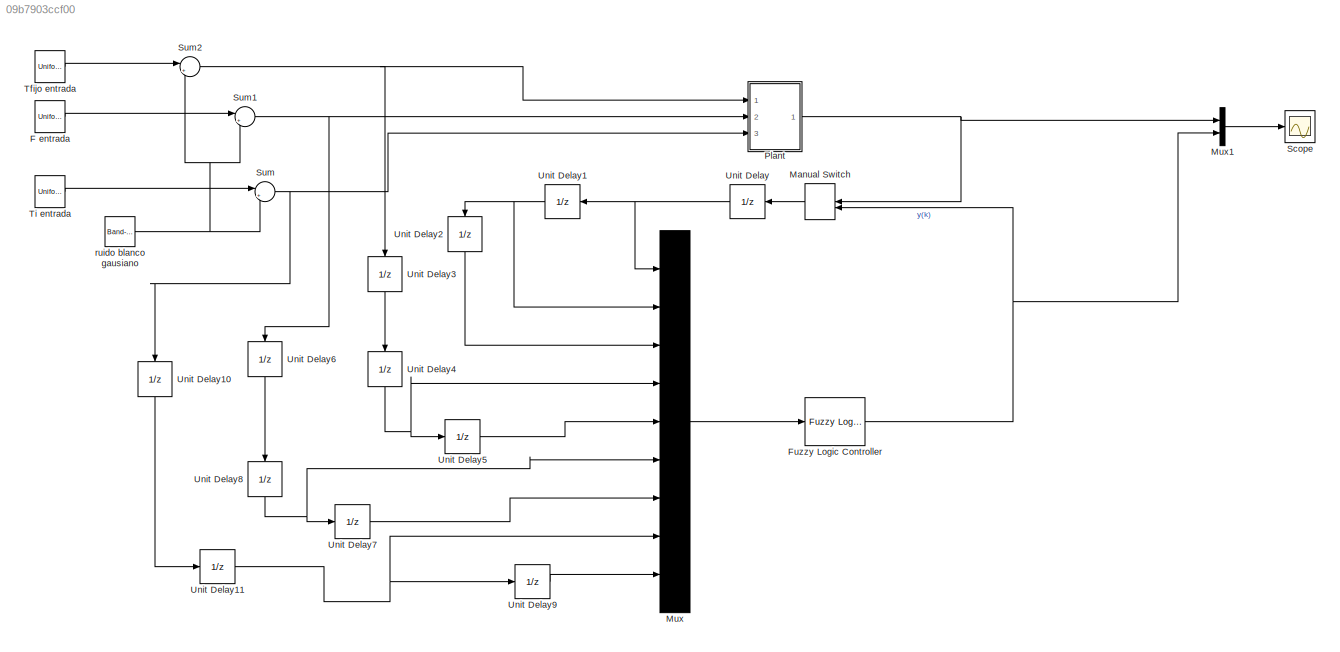
MODEL slx_09b7903ccf00
KIND model
CONFIG AbsTol = auto
CONFIG FixedStep = auto
CONFIG MaxStep = auto
CONFIG MinStep = auto
CONFIG RelTol = 1e-3
CONFIG SampleTimeConstraint = Unconstrained
CONFIG Solver = VariableStepAuto
CONFIG SolverMode = Auto
CONFIG SolverName = VariableStepAuto
CONFIG StartTime = 0.0
CONFIG StopTime = 1500
BLOCK [UniformRandomNumber] F entrada
  Maximum = 107
  Minimum = -4
  SampleTime = ts
BLOCK [Reference] Fuzzy Logic Controller  REF=fuzblock/Fuzzy Logic   (lib defined in mdl_858b3b3e7478)
Controller
  Ports = [1, 1]
  SourceBlock = fuzblock/Fuzzy Logic \nController
  SourceType = FIS
BLOCK [ManualSwitch] Manual Switch
  CurrentSetting = 0
BLOCK [Mux] Mux
  DisplayOption = bar
  Inputs = 9
  Ports = [9, 1]
BLOCK [Mux] Mux1
  DisplayOption = bar
  Inputs = 2
  Ports = [2, 1]
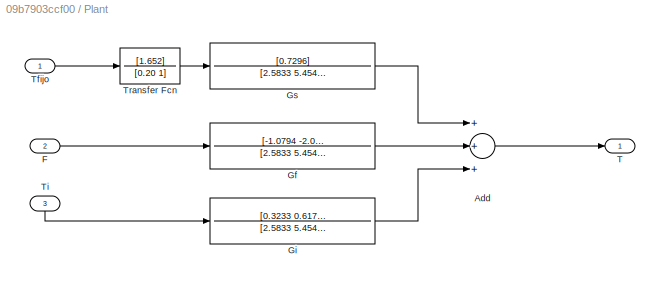
BLOCK [SubSystem] Plant
  Ports = [3, 1]
  RequestExecContextInheritance = off
  Variant = off
BLOCK [Sum] Plant/Add
  InputSameDT = off
  Inputs = +++
  OutDataTypeStr = Inherit: Inherit via internal rule
  Ports = [3, 1]
  SaturateOnIntegerOverflow = off
BLOCK [Inport] Plant/F
  IconDisplay = Port number
  Port = 2
BLOCK [TransferFcn] Plant/Gf
  Denominator = [2.5833 5.4540 0.6170]
  Numerator = [-1.0794 -2.0600]
BLOCK [TransferFcn] Plant/Gi
  Denominator = [2.5833 5.4540  0.6170]
  Numerator = [0.3233 0.6170]
BLOCK [TransferFcn] Plant/Gs
  Denominator = [2.5833 5.4540  0.6170]
  Numerator = [0.7296]
BLOCK [Outport] Plant/T
  IconDisplay = Port number
BLOCK [Inport] Plant/Tfijo
  IconDisplay = Port number
BLOCK [Inport] Plant/Ti
  IconDisplay = Port number
  Port = 3
BLOCK [TransferFcn] Plant/Transfer Fcn
  Denominator = [0.20 1]
  Numerator = [1.652]
BLOCK [Scope] Scope
  Ports = [1]
  ScopeSpecificationString = Simulink.scopes.TimeScopeBlockCfg('CurrentConfiguration', extmgr.ConfigurationSet(extmgr.Configuration('Core','General UI',true),extmgr.Configuration('Core','Source UI',true),extmgr.Configuration('Sources','WiredSimulink',true),extmgr.Configuration('Visuals','Time Domain',true,'SerializedDisplays',{struct('MinYLimReal','-15965.57654','MaxYLimReal','10538.77948','YLabelReal','','MinYLimMag','   0.0...<+1433ch>
BLOCK [Sum] Sum
  IconShape = round
  InputSameDT = off
  Inputs = |++
  OutDataTypeStr = Inherit: Inherit via internal rule
  Ports = [2, 1]
  SaturateOnIntegerOverflow = off
BLOCK [Sum] Sum1
  IconShape = round
  InputSameDT = off
  Inputs = |++
  OutDataTypeStr = Inherit: Inherit via internal rule
  Ports = [2, 1]
  SaturateOnIntegerOverflow = off
BLOCK [Sum] Sum2
  IconShape = round
  InputSameDT = off
  Inputs = |++
  OutDataTypeStr = Inherit: Inherit via internal rule
  Ports = [2, 1]
  SaturateOnIntegerOverflow = off
BLOCK [UniformRandomNumber] Tfijo entrada
  Maximum = 270
  Minimum = -15
  SampleTime = ts
BLOCK [UniformRandomNumber] Ti entrada
  Maximum = 320
  Minimum = -100
  SampleTime = ts
BLOCK [UnitDelay] Unit Delay
  InputProcessing = Elements as channels (sample based)
  SampleTime = tm
BLOCK [UnitDelay] Unit Delay1
  InputProcessing = Elements as channels (sample based)
  SampleTime = tm
BLOCK [UnitDelay] Unit Delay10
  InputProcessing = Elements as channels (sample based)
  SampleTime = tm
BLOCK [UnitDelay] Unit Delay11
  InputProcessing = Elements as channels (sample based)
  SampleTime = tm
BLOCK [UnitDelay] Unit Delay2
  InputProcessing = Elements as channels (sample based)
  SampleTime = tm
BLOCK [UnitDelay] Unit Delay3
  InputProcessing = Elements as channels (sample based)
  SampleTime = tm
BLOCK [UnitDelay] Unit Delay4
  InputProcessing = Elements as channels (sample based)
  SampleTime = tm
BLOCK [UnitDelay] Unit Delay5
  InputProcessing = Elements as channels (sample based)
  SampleTime = tm
BLOCK [UnitDelay] Unit Delay6
  InputProcessing = Elements as channels (sample based)
  SampleTime = tm
BLOCK [UnitDelay] Unit Delay7
  InputProcessing = Elements as channels (sample based)
  SampleTime = tm
BLOCK [UnitDelay] Unit Delay8
  InputProcessing = Elements as channels (sample based)
  SampleTime = tm
BLOCK [UnitDelay] Unit Delay9
  InputProcessing = Elements as channels (sample based)
  SampleTime = tm
BLOCK [Reference] ruido blanco gausiano  REF=simulink/Sources/Band-Limited
White Noise
  Ports = [0, 1]
  SourceBlock = simulink/Sources/Band-Limited\nWhite Noise
  SourceType = Band-Limited White Noise.
LINE F entrada:1 -> Sum1:1
NET Fuzzy Logic Controller:1 -> Manual Switch:2, Mux1:2
LINE Manual Switch:1 -> Unit Delay:1
LINE Mux1:1 -> Scope:1
LINE Mux:1 -> Fuzzy Logic Controller:1
LINE Plant/Add:1 -> Plant/T:1
LINE Plant/F:1 -> Plant/Gf:1
LINE Plant/Gf:1 -> Plant/Add:2
LINE Plant/Gi:1 -> Plant/Add:3
LINE Plant/Gs:1 -> Plant/Add:1
LINE Plant/Tfijo:1 -> Plant/Transfer Fcn:1
LINE Plant/Ti:1 -> Plant/Gi:1
LINE Plant/Transfer Fcn:1 -> Plant/Gs:1
NET Plant:1 -> Manual Switch:1, Mux1:1
NET Sum1:1 -> Plant:2, Unit Delay6:1
NET Sum2:1 -> Plant:1, Unit Delay3:1
NET Sum:1 -> Plant:3, Unit Delay10:1
LINE Tfijo entrada:1 -> Sum2:1
LINE Ti entrada:1 -> Sum:1
LINE Unit Delay10:1 -> Unit Delay11:1
NET Unit Delay11:1 -> Mux:8, Unit Delay9:1
NET Unit Delay1:1 -> Mux:2, Unit Delay2:1
LINE Unit Delay2:1 -> Mux:3
LINE Unit Delay3:1 -> Unit Delay4:1
NET Unit Delay4:1 -> Mux:4, Unit Delay5:1
LINE Unit Delay5:1 -> Mux:5
LINE Unit Delay6:1 -> Unit Delay8:1
LINE Unit Delay7:1 -> Mux:7
NET Unit Delay8:1 -> Mux:6, Unit Delay7:1
LINE Unit Delay9:1 -> Mux:9
NET Unit Delay:1 -> Mux:1, Unit Delay1:1
NET ruido blanco gausiano:1 -> Sum1:2, Sum2:2, Sum:2
note: NET lines group one-source signal fan-out (src -> all destinations, sorted); 1:1 wires keep LINE
